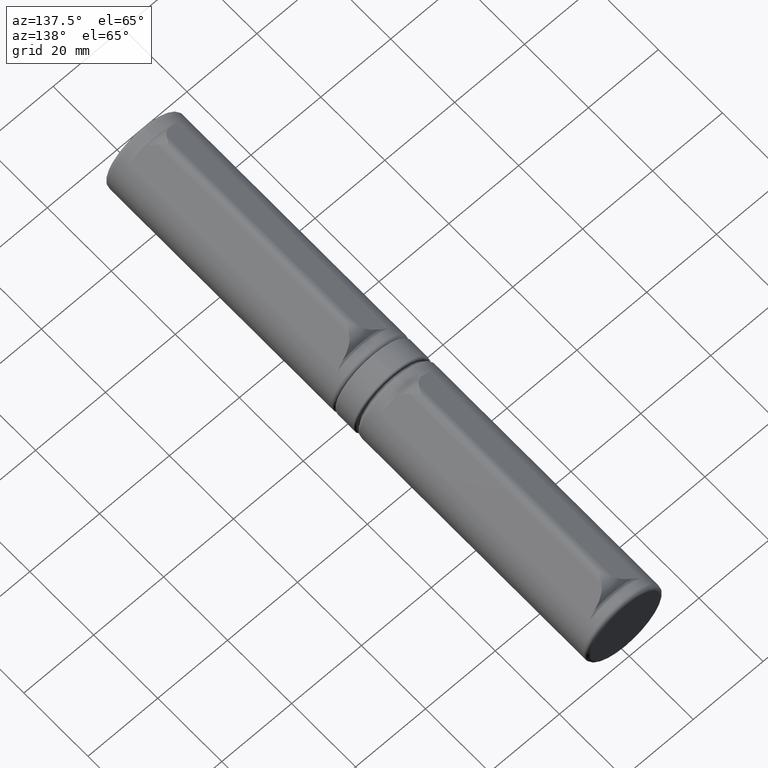
[diagram: clean part render]
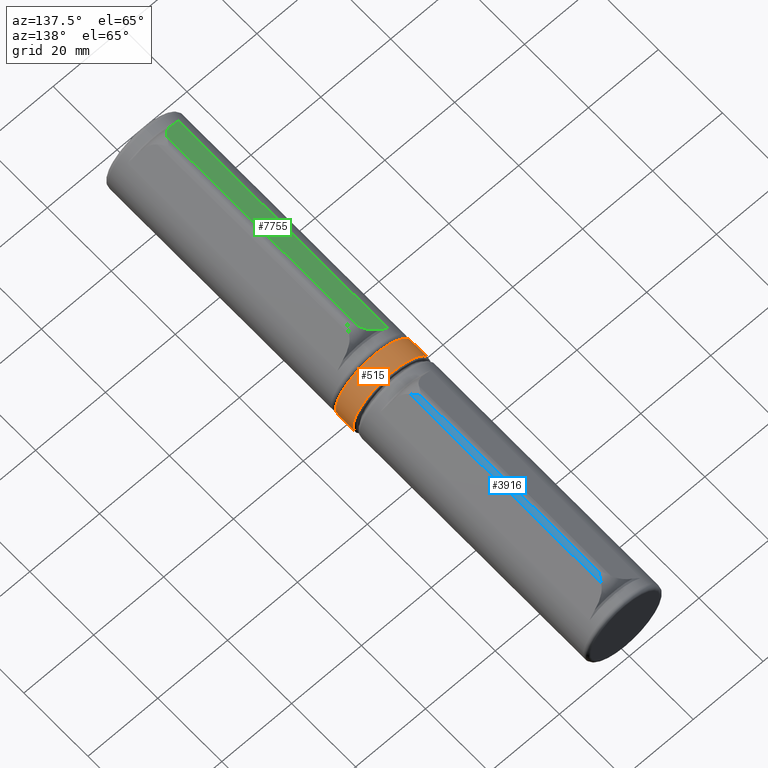
[diagram: same view with three faces highlighted in distinct colors, each labeled with its STEP entity id]
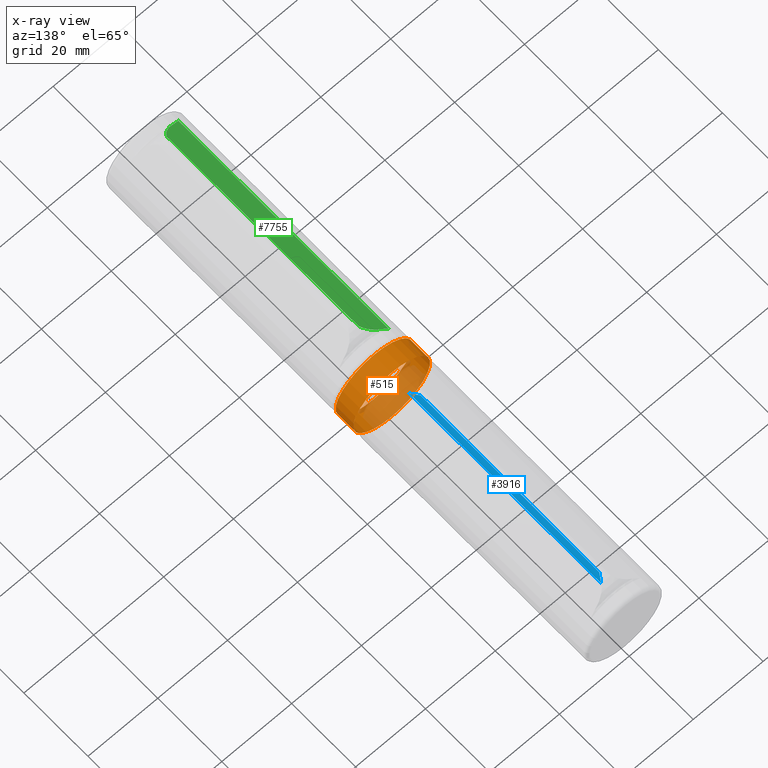
[diagram: x-ray of the same camera — body ghosted, the three highlighted faces saturated]
A machine part, auxiliary view with three faces highlighted in distinct colors.
The next image is the same camera in x-ray (body ghosted, the three faces saturated) — at least one of them is partly hidden behind the body in this view.
Their STEP definitions:

[orange] entity #515 — the highlighted cylindrical surface (bore or boss wall) has radius 11 mm, axis along (0, 1, 0).
#324 = EDGE_LOOP ( 'NONE', ( #10806 ) ) ;
#515 = ADVANCED_FACE ( 'NONE', ( #11118, #3271 ), #7920, .T. ) ;
#1279 = DIRECTION ( 'NONE',  ( 0.000000000000000000, 0.000000000000000000, 1.000000000000000000 ) ) ;
#1572 = DIRECTION ( 'NONE',  ( -0.000000000000000000, 1.000000000000000000, -0.000000000000000000 ) ) ;
#2250 = CARTESIAN_POINT ( 'NONE',  ( 0.000000000000000000, -3.149999999999999023, 11.00000000000000000 ) ) ;
#2970 = CARTESIAN_POINT ( 'NONE',  ( 0.000000000000000000, 0.000000000000000000, 0.000000000000000000 ) ) ;
#3127 = CIRCLE ( 'NONE', #4740, 11.00000000000000000 ) ;
#3271 = FACE_OUTER_BOUND ( 'NONE', #324, .T. ) ;
#4063 = CARTESIAN_POINT ( 'NONE',  ( 0.000000000000000000, 2.400000000000000355, 0.000000000000000000 ) ) ;
#4655 = ORIENTED_EDGE ( 'NONE', *, *, #9634, .T. ) ;
#4740 = AXIS2_PLACEMENT_3D ( 'NONE', #6736, #1572, #8441 ) ;
#6736 = CARTESIAN_POINT ( 'NONE',  ( 0.000000000000000000, -3.149999999999999023, 0.000000000000000000 ) ) ;
#7017 = VERTEX_POINT ( 'NONE', #2250 ) ;
#7052 = EDGE_LOOP ( 'NONE', ( #4655 ) ) ;
#7325 = DIRECTION ( 'NONE',  ( -0.000000000000000000, 1.000000000000000000, -0.000000000000000000 ) ) ;
#7920 = CYLINDRICAL_SURFACE ( 'NONE', #8702, 11.00000000000000000 ) ;
#7965 = EDGE_CURVE ( 'NONE', #11184, #11184, #8599, .T. ) ;
#8441 = DIRECTION ( 'NONE',  ( 0.000000000000000000, 0.000000000000000000, 1.000000000000000000 ) ) ;
#8599 = CIRCLE ( 'NONE', #11002, 11.00000000000000000 ) ;
#8702 = AXIS2_PLACEMENT_3D ( 'NONE', #2970, #7325, #1279 ) ;
#9634 = EDGE_CURVE ( 'NONE', #7017, #7017, #3127, .T. ) ;
#10216 = DIRECTION ( 'NONE',  ( 0.000000000000000000, 0.000000000000000000, -1.000000000000000000 ) ) ;
#10806 = ORIENTED_EDGE ( 'NONE', *, *, #7965, .T. ) ;
#10846 = CARTESIAN_POINT ( 'NONE',  ( 0.000000000000000000, 2.400000000000000355, -11.00000000000000000 ) ) ;
#11002 = AXIS2_PLACEMENT_3D ( 'NONE', #4063, #11093, #10216 ) ;
#11093 = DIRECTION ( 'NONE',  ( 0.000000000000000000, -1.000000000000000000, 0.000000000000000000 ) ) ;
#11118 = FACE_OUTER_BOUND ( 'NONE', #7052, .T. ) ;
#11184 = VERTEX_POINT ( 'NONE', #10846 ) ;

[blue] entity #3916 — the highlighted cylindrical surface (edge-blend (fillet) strip) has radius 2 mm, axis along (-0, -1, -0).
#38 = CARTESIAN_POINT ( 'NONE',  ( 0.02500000000000171529, 25.99999999999999645, 14.00000000000000178 ) ) ;
#238 = CARTESIAN_POINT ( 'NONE',  ( 0.04019047951975200650, 26.00000000000000000, 13.99994231150100177 ) ) ;
#323 = CARTESIAN_POINT ( 'NONE',  ( 1.160990710305745965, -29.62569070999766652, 13.66551710211812853 ) ) ;
#332 = CARTESIAN_POINT ( 'NONE',  ( 0.5013659999288786473, 28.61189442064642208, 13.94605056130608922 ) ) ;
#511 = LINE ( 'NONE', #4606, #8765 ) ;
#793 = DIRECTION ( 'NONE',  ( 0.000000000000000000, -1.000000000000000000, -1.445602896647339410E-16 ) ) ;
#917 = CARTESIAN_POINT ( 'NONE',  ( 0.02500000000000122610, 36.00000000000000000, 12.00000000000000355 ) ) ;
#1074 = EDGE_CURVE ( 'NONE', #8132, #5893, #3341, .T. ) ;
#1091 = EDGE_CURVE ( 'NONE', #2691, #5893, #3690, .T. ) ;
#1094 = EDGE_CURVE ( 'NONE', #2810, #3270, #6936, .T. ) ;
#1109 = CARTESIAN_POINT ( 'NONE',  ( 1.351001462184558077, 36.00000000000000000, 13.49723749695378849 ) ) ;
#1169 = DIRECTION ( 'NONE',  ( 0.000000000000000000, -1.000000000000000000, -1.445602896647339410E-16 ) ) ;
#1204 = CARTESIAN_POINT ( 'NONE',  ( 0.3265468217379240978, 28.35334104575060010, 13.97802397674086983 ) ) ;
#1226 = CARTESIAN_POINT ( 'NONE',  ( 0.06268146067872823468, -27.96398372410885003, 13.99965685889270084 ) ) ;
#1233 = DIRECTION ( 'NONE',  ( 0.000000000000000000, -1.000000000000000000, 1.445602896647339410E-16 ) ) ;
#1339 = CARTESIAN_POINT ( 'NONE',  ( 0.04019047951954253517, 27.91742430504415395, 13.99994231150100887 ) ) ;
#1544 = ORIENTED_EDGE ( 'NONE', *, *, #4748, .T. ) ;
#1640 = EDGE_CURVE ( 'NONE', #5411, #3985, #6807, .T. ) ;
#1950 = CARTESIAN_POINT ( 'NONE',  ( 0.1062027294717270559, -28.02908258809095443, 13.99840458350218597 ) ) ;
#2471 = AXIS2_PLACEMENT_3D ( 'NONE', #10271, #793, #7764 ) ;
#2691 = VERTEX_POINT ( 'NONE', #6318 ) ;
#2799 = CARTESIAN_POINT ( 'NONE',  ( 0.1501165675771497787, -28.09388185887261002, 13.99629779718921263 ) ) ;
#2810 = VERTEX_POINT ( 'NONE', #3060 ) ;
#2837 = CARTESIAN_POINT ( 'NONE',  ( 0.3258129472120024905, -28.35225974672253102, 13.97813046162209716 ) ) ;
#2952 = CARTESIAN_POINT ( 'NONE',  ( 0.5001282226505422424, -28.61005570449488289, 13.94633177584688966 ) ) ;
#3060 = CARTESIAN_POINT ( 'NONE',  ( 0.02500000000000171529, -25.99999999999999645, 14.00000000000000178 ) ) ;
#3151 = CARTESIAN_POINT ( 'NONE',  ( 0.04891763799561581194, 27.94185033604464508, 13.99986890743364576 ) ) ;
#3168 = VECTOR ( 'NONE', #9262, 1000.000000000000000 ) ;
#3176 = CARTESIAN_POINT ( 'NONE',  ( 0.02500000000000171529, 36.00000000000000000, 14.00000000000000178 ) ) ;
#3234 = CYLINDRICAL_SURFACE ( 'NONE', #9288, 2.000000000000001776 ) ;
#3270 = VERTEX_POINT ( 'NONE', #3837 ) ;
#3341 = B_SPLINE_CURVE_WITH_KNOTS ( 'NONE', 3,
 ( #10647, #9759, #7189, #1226, #10679, #3841, #1950, #2799, #6270, #3683, #2837, #2952, #8145, #6343, #323, #9909 ),
 .UNSPECIFIED., .F., .F.,
 ( 4, 2, 2, 2, 2, 2, 2, 4 ),
 ( 1.956890816479067532E-07, 3.924361120408033197E-05, 7.829153332651276741E-05, 0.0001563873775713690189, 0.0003125790660610902496, 0.0006249624430405327112, 0.001249729196999426525, 0.002499262704917206129 ),
 .UNSPECIFIED. ) ;
#3493 = DIRECTION ( 'NONE',  ( -0.000000000000000000, -1.000000000000000000, -0.000000000000000000 ) ) ;
#3651 = EDGE_LOOP ( 'NONE', ( #4934, #9663, #5065, #7846, #10265, #1544, #4027, #6233 ) ) ;
#3683 = CARTESIAN_POINT ( 'NONE',  ( 0.2673847846797132166, -28.26626032181201609, 13.98613017325101993 ) ) ;
#3690 = LINE ( 'NONE', #1109, #9265 ) ;
#3837 = CARTESIAN_POINT ( 'NONE',  ( 0.04019047951976118666, -26.00000000000000000, 13.99994231150100177 ) ) ;
#3841 = CARTESIAN_POINT ( 'NONE',  ( 0.09156454697700638912, -28.00747831101666208, 13.99894423454601977 ) ) ;
#3916 = ADVANCED_FACE ( 'NONE', ( #10955 ), #3234, .T. ) ;
#3985 = VERTEX_POINT ( 'NONE', #38 ) ;
#4027 = ORIENTED_EDGE ( 'NONE', *, *, #7087, .T. ) ;
#4551 = DIRECTION ( 'NONE',  ( 0.000000000000000000, 1.000000000000000000, -1.445602896647339410E-16 ) ) ;
#4606 = CARTESIAN_POINT ( 'NONE',  ( 0.04019047951975201344, 26.95871215252207875, 13.99994231150100354 ) ) ;
#4675 = EDGE_CURVE ( 'NONE', #3270, #8132, #8417, .T. ) ;
#4742 = CARTESIAN_POINT ( 'NONE',  ( 0.6156692077773874283, 28.78253752962173806, 13.91448063943788860 ) ) ;
#4748 = EDGE_CURVE ( 'NONE', #2691, #6020, #9702, .T. ) ;
#4858 = CARTESIAN_POINT ( 'NONE',  ( 0.09167234762572203099, 28.00763856088766701, 13.99894086666713910 ) ) ;
#4934 = ORIENTED_EDGE ( 'NONE', *, *, #6767, .T. ) ;
#5065 = ORIENTED_EDGE ( 'NONE', *, *, #4675, .T. ) ;
#5411 = VERTEX_POINT ( 'NONE', #238 ) ;
#5485 = CARTESIAN_POINT ( 'NONE',  ( 1.160508044113916393, 29.62484675074094653, 13.66594456674961755 ) ) ;
#5637 = AXIS2_PLACEMENT_3D ( 'NONE', #8028, #4551, #10607 ) ;
#5748 = CARTESIAN_POINT ( 'NONE',  ( 0.06995353398352960328, 27.97496614064052167, 13.99950784628993183 ) ) ;
#5893 = VERTEX_POINT ( 'NONE', #7575 ) ;
#6020 = VERTEX_POINT ( 'NONE', #10458 ) ;
#6233 = ORIENTED_EDGE ( 'NONE', *, *, #1640, .T. ) ;
#6270 = CARTESIAN_POINT ( 'NONE',  ( 0.1794816681744354492, -28.13700997572581741, 13.99424203055537674 ) ) ;
#6318 = CARTESIAN_POINT ( 'NONE',  ( 1.351001462188403002, 29.95793136768486420, 13.49723749695038322 ) ) ;
#6343 = CARTESIAN_POINT ( 'NONE',  ( 0.9500490946656295899, -29.29161573060240187, 13.78916174346675838 ) ) ;
#6602 = CARTESIAN_POINT ( 'NONE',  ( 0.1063434402170490706, 28.02929075759493571, 13.99839909054449727 ) ) ;
#6767 = EDGE_CURVE ( 'NONE', #3985, #2810, #7546, .T. ) ;
#6807 = CIRCLE ( 'NONE', #2471, 2.000000000000001776 ) ;
#6936 = CIRCLE ( 'NONE', #5637, 2.000000000000001776 ) ;
#6989 = CARTESIAN_POINT ( 'NONE',  ( 0.04019047951957565451, -27.91742430504415395, 13.99994231150100887 ) ) ;
#7087 = EDGE_CURVE ( 'NONE', #6020, #5411, #511, .T. ) ;
#7189 = CARTESIAN_POINT ( 'NONE',  ( 0.04890691204995075564, -27.94183058076624704, 13.99986897204585112 ) ) ;
#7226 = DIRECTION ( 'NONE',  ( -0.000000000000000000, -1.000000000000000000, -0.000000000000000000 ) ) ;
#7239 = CARTESIAN_POINT ( 'NONE',  ( 0.2679075107729744221, 28.26702913599298839, 13.98607088621623795 ) ) ;
#7546 = LINE ( 'NONE', #3176, #3168 ) ;
#7575 = CARTESIAN_POINT ( 'NONE',  ( 1.351001462192061187, -29.95793136769125908, 13.49723749694714137 ) ) ;
#7764 = DIRECTION ( 'NONE',  ( 0.000000000000000000, 0.000000000000000000, -1.000000000000000000 ) ) ;
#7846 = ORIENTED_EDGE ( 'NONE', *, *, #1074, .T. ) ;
#7875 = DIRECTION ( 'NONE',  ( 0.000000000000000000, 0.000000000000000000, -1.000000000000000000 ) ) ;
#8028 = CARTESIAN_POINT ( 'NONE',  ( 0.02500000000000122610, -25.99999999999999645, 12.00000000000000355 ) ) ;
#8132 = VERTEX_POINT ( 'NONE', #6989 ) ;
#8145 = CARTESIAN_POINT ( 'NONE',  ( 0.6152469644729674503, -28.78189699773122712, 13.91463114303699200 ) ) ;
#8417 = LINE ( 'NONE', #9058, #10553 ) ;
#8765 = VECTOR ( 'NONE', #1169, 1000.000000000000000 ) ;
#9058 = CARTESIAN_POINT ( 'NONE',  ( 0.04019047951975201344, -26.95871215252207875, 13.99994231150100354 ) ) ;
#9262 = DIRECTION ( 'NONE',  ( -0.000000000000000000, -1.000000000000000000, -0.000000000000000000 ) ) ;
#9265 = VECTOR ( 'NONE', #7226, 1000.000000000000000 ) ;
#9288 = AXIS2_PLACEMENT_3D ( 'NONE', #917, #3493, #7875 ) ;
#9663 = ORIENTED_EDGE ( 'NONE', *, *, #1094, .T. ) ;
#9702 = B_SPLINE_CURVE_WITH_KNOTS ( 'NONE', 3,
 ( #10765, #5485, #9960, #4742, #332, #1204, #7239, #10905, #10829, #6602, #4858, #5748, #10792, #3151, #9988, #1339 ),
 .UNSPECIFIED., .F., .F.,
 ( 4, 2, 2, 2, 2, 2, 2, 4 ),
 ( 4.340072789122259820E-07, 0.001240519005735587392, 0.001860561504963924567, 0.002170582754578093479, 0.002325593379385177718, 0.002403098691788723741, 0.002441851347990501523, 0.002480604004192278438 ),
 .UNSPECIFIED. ) ;
#9759 = CARTESIAN_POINT ( 'NONE',  ( 0.04019047951956296327, -27.93071537509031899, 13.99994231150100354 ) ) ;
#9909 = CARTESIAN_POINT ( 'NONE',  ( 1.351001462192061187, -29.95793136769125908, 13.49723749694714137 ) ) ;
#9960 = CARTESIAN_POINT ( 'NONE',  ( 0.9495471721048669433, 29.29085620622733188, 13.78933436052302319 ) ) ;
#9988 = CARTESIAN_POINT ( 'NONE',  ( 0.04019047938135301978, 27.93061954580347361, 13.99994231150222213 ) ) ;
#10265 = ORIENTED_EDGE ( 'NONE', *, *, #1091, .F. ) ;
#10271 = CARTESIAN_POINT ( 'NONE',  ( 0.02500000000000122610, 25.99999999999999645, 12.00000000000000355 ) ) ;
#10458 = CARTESIAN_POINT ( 'NONE',  ( 0.04019047951954253517, 27.91742430504415395, 13.99994231150100887 ) ) ;
#10553 = VECTOR ( 'NONE', #1233, 1000.000000000000000 ) ;
#10607 = DIRECTION ( 'NONE',  ( 0.000000000000000000, 0.000000000000000000, 1.000000000000000000 ) ) ;
#10647 = CARTESIAN_POINT ( 'NONE',  ( 0.04019047951957565451, -27.91742430504415395, 13.99994231150100887 ) ) ;
#10679 = CARTESIAN_POINT ( 'NONE',  ( 0.06989227748950904706, -27.97487302322779712, 13.99950916635972931 ) ) ;
#10765 = CARTESIAN_POINT ( 'NONE',  ( 1.351001462188403002, 29.95793136768486420, 13.49723749695038322 ) ) ;
#10792 = CARTESIAN_POINT ( 'NONE',  ( 0.06272908214061213850, 27.96405779639183464, 13.99965602459222325 ) ) ;
#10829 = CARTESIAN_POINT ( 'NONE',  ( 0.1503508223234190089, 28.09422644235295508, 13.99628402106626979 ) ) ;
#10905 = CARTESIAN_POINT ( 'NONE',  ( 0.1797755674968879724, 28.13744201227907027, 13.99422038142037827 ) ) ;
#10955 = FACE_OUTER_BOUND ( 'NONE', #3651, .T. ) ;

[green] entity #7755 — the highlighted planar face has unit normal (0.663, 0, -0.7486).
#50 = DIRECTION ( 'NONE',  ( -0.000000000000000000, -1.000000000000000000, -0.000000000000000000 ) ) ;
#246 = CARTESIAN_POINT ( 'NONE',  ( -5.447942985781642378, -32.37104201919539292, 9.868854917819081862 ) ) ;
#276 = CARTESIAN_POINT ( 'NONE',  ( -5.758780296161760681, -32.41736844719445543, 9.593567444118923149 ) ) ;
#383 = CARTESIAN_POINT ( 'NONE',  ( -3.035715932361762182, 31.60344858703625093, 12.00520042510411223 ) ) ;
#415 = CARTESIAN_POINT ( 'NONE',  ( -3.569870829633103426, 31.87809028156799585, 11.53213574681767462 ) ) ;
#443 = ORIENTED_EDGE ( 'NONE', *, *, #5989, .F. ) ;
#524 = CARTESIAN_POINT ( 'NONE',  ( -3.940691542818028026, 32.01865915691611519, 11.20372505119193818 ) ) ;
#977 = CARTESIAN_POINT ( 'NONE',  ( -6.067205832993831649, 32.48636218328562109, 9.320415914287178083 ) ) ;
#1049 = CARTESIAN_POINT ( 'NONE',  ( -4.695170118838899675, -32.23773122813857128, 10.53553466922110360 ) ) ;
#1159 = CARTESIAN_POINT ( 'NONE',  ( -5.447942985781642378, -32.37104201919539292, 9.868854917819081862 ) ) ;
#1261 = VERTEX_POINT ( 'NONE', #4729 ) ;
#1880 = CARTESIAN_POINT ( 'NONE',  ( -1.586987748186611480, -30.37056190615778206, 13.28824048683956960 ) ) ;
#1921 = CARTESIAN_POINT ( 'NONE',  ( -1.587154504392917165, 30.37085348540324858, 13.28809280220447597 ) ) ;
#1944 = EDGE_CURVE ( 'NONE', #4616, #2733, #6838, .T. ) ;
#1963 = CARTESIAN_POINT ( 'NONE',  ( -3.951137175203035756, -32.01407879760264308, 11.19447406472910700 ) ) ;
#2038 = CARTESIAN_POINT ( 'NONE',  ( -1.873287189988674939, -30.71014211084137102, 13.03468453514550163 ) ) ;
#2039 = CARTESIAN_POINT ( 'NONE',  ( -2.351011572594685184, 31.13966351073068495, 12.61159652730066227 ) ) ;
#2117 = CARTESIAN_POINT ( 'NONE',  ( -5.447942985781645930, 32.37104201919539292, 9.868854917819076533 ) ) ;
#2214 = CARTESIAN_POINT ( 'NONE',  ( -1.351001462184445279, 29.95793136767795772, 13.49723749695388086 ) ) ;
#2594 = CARTESIAN_POINT ( 'NONE',  ( -7.293008042015047820, 32.81640379061051505, 8.234806233245794971 ) ) ;
#2733 = VERTEX_POINT ( 'NONE', #9807 ) ;
#2881 = LINE ( 'NONE', #5210, #5890 ) ;
#2896 = CARTESIAN_POINT ( 'NONE',  ( -2.860889670684951813, 31.50107170427018843, 12.16003215960406081 ) ) ;
#3292 = CARTESIAN_POINT ( 'NONE',  ( -7.293008042015047820, 36.00000000000000000, 8.234806233245794971 ) ) ;
#3440 = VERTEX_POINT ( 'NONE', #10433 ) ;
#3680 = EDGE_CURVE ( 'NONE', #1261, #7322, #4441, .T. ) ;
#3815 = DIRECTION ( 'NONE',  ( 0.6630007310922773067, 0.000000000000000000, -0.7486187484768904721 ) ) ;
#4257 = CARTESIAN_POINT ( 'NONE',  ( -6.681504807941665014, 32.64214442038468889, 8.776373074953683684 ) ) ;
#4347 = DIRECTION ( 'NONE',  ( -0.000000000000000000, -1.000000000000000000, -0.000000000000000000 ) ) ;
#4441 = B_SPLINE_CURVE_WITH_KNOTS ( 'NONE', 3,
 ( #7857, #10365, #977, #4257, #5181, #2594 ),
 .UNSPECIFIED., .F., .F.,
 ( 4, 2, 4 ),
 ( 0.000000000000000000, 0.001252526485368583766, 0.002505052970737167532 ),
 .UNSPECIFIED. ) ;
#4524 = CARTESIAN_POINT ( 'NONE',  ( -1.351001462184552304, -29.95793136767813891, 13.49723749695378672 ) ) ;
#4616 = VERTEX_POINT ( 'NONE', #1159 ) ;
#4729 = CARTESIAN_POINT ( 'NONE',  ( -5.447942985781645930, 32.37104201919539292, 9.868854917819076533 ) ) ;
#4848 = EDGE_LOOP ( 'NONE', ( #7632, #9657, #10985, #443, #5240, #10915 ) ) ;
#5112 = EDGE_CURVE ( 'NONE', #3440, #4616, #9853, .T. ) ;
#5181 = CARTESIAN_POINT ( 'NONE',  ( -6.987323153768357997, 32.72934799532367833, 8.505530556946956366 ) ) ;
#5210 = CARTESIAN_POINT ( 'NONE',  ( -1.351001462184552748, 36.00000000000000000, 13.49723749695378672 ) ) ;
#5240 = ORIENTED_EDGE ( 'NONE', *, *, #5787, .T. ) ;
#5408 = CARTESIAN_POINT ( 'NONE',  ( -2.515940252614200290, -31.28758993470380645, 12.46553040799293655 ) ) ;
#5787 = EDGE_CURVE ( 'NONE', #7242, #1261, #7245, .T. ) ;
#5884 = LINE ( 'NONE', #3292, #6159 ) ;
#5890 = VECTOR ( 'NONE', #50, 1000.000000000000000 ) ;
#5989 = EDGE_CURVE ( 'NONE', #7242, #2733, #2881, .T. ) ;
#6159 = VECTOR ( 'NONE', #4347, 1000.000000000000000 ) ;
#6176 = AXIS2_PLACEMENT_3D ( 'NONE', #6404, #3815, #7285 ) ;
#6247 = CARTESIAN_POINT ( 'NONE',  ( -4.136579845280345502, -32.07583796848808078, 11.03024009905951885 ) ) ;
#6249 = CARTESIAN_POINT ( 'NONE',  ( -1.351001462184445279, 29.95793136767795772, 13.49723749695388086 ) ) ;
#6404 = CARTESIAN_POINT ( 'NONE',  ( -7.293008042015047820, 36.00000000000000000, 8.234806233245794971 ) ) ;
#6838 = B_SPLINE_CURVE_WITH_KNOTS ( 'NONE', 3,
 ( #7204, #8000, #1049, #6247, #1963, #9818, #7154, #8089, #5408, #2038, #1880, #4524 ),
 .UNSPECIFIED., .F., .F.,
 ( 4, 2, 2, 2, 2, 4 ),
 ( 0.002461092890325597329, 0.003982605754971837823, 0.004743362187294962624, 0.005504118619618088293, 0.007025631484264346568, 0.008547144348910601375 ),
 .UNSPECIFIED. ) ;
#7154 = CARTESIAN_POINT ( 'NONE',  ( -3.398271117733235869, -31.78961271975397906, 11.68410994553539162 ) ) ;
#7187 = CARTESIAN_POINT ( 'NONE',  ( -6.681502846419478558, -32.64214389153531926, 8.776374812140536719 ) ) ;
#7204 = CARTESIAN_POINT ( 'NONE',  ( -5.447942985781642378, -32.37104201919539292, 9.868854917819081862 ) ) ;
#7242 = VERTEX_POINT ( 'NONE', #2214 ) ;
#7245 = B_SPLINE_CURVE_WITH_KNOTS ( 'NONE', 3,
 ( #6249, #1921, #10583, #2039, #8090, #2896, #383, #415, #524, #10834, #9967, #2117 ),
 .UNSPECIFIED., .F., .F.,
 ( 4, 2, 2, 2, 2, 4 ),
 ( 4.315846893833480204E-07, 0.001529138967088140453, 0.002293492658287518519, 0.003057846349486897236, 0.004586553731885653802, 0.006115261114284411235 ),
 .UNSPECIFIED. ) ;
#7285 = DIRECTION ( 'NONE',  ( -0.7486187484768904721, 0.000000000000000000, -0.6630007310922773067 ) ) ;
#7322 = VERTEX_POINT ( 'NONE', #8267 ) ;
#7632 = ORIENTED_EDGE ( 'NONE', *, *, #8403, .T. ) ;
#7755 = ADVANCED_FACE ( 'NONE', ( #11012 ), #10701, .F. ) ;
#7857 = CARTESIAN_POINT ( 'NONE',  ( -5.447942985781645930, 32.37104201919539292, 9.868854917819076533 ) ) ;
#8000 = CARTESIAN_POINT ( 'NONE',  ( -5.070549496298426995, -32.31479622200819080, 10.20308667456563967 ) ) ;
#8025 = CARTESIAN_POINT ( 'NONE',  ( -7.293008042015047820, -32.81640379061052215, 8.234806233245794971 ) ) ;
#8072 = CARTESIAN_POINT ( 'NONE',  ( -6.067204845374555511, -32.48636196425200495, 9.320416788954421605 ) ) ;
#8089 = CARTESIAN_POINT ( 'NONE',  ( -2.860236993032547748, -31.51370890940605207, 12.16061019182886582 ) ) ;
#8090 = CARTESIAN_POINT ( 'NONE',  ( -2.519150998510788497, 31.26974603272012487, 12.46268686863312070 ) ) ;
#8267 = CARTESIAN_POINT ( 'NONE',  ( -7.293008042015047820, 32.81640379061051505, 8.234806233245794971 ) ) ;
#8403 = EDGE_CURVE ( 'NONE', #7322, #3440, #5884, .T. ) ;
#9657 = ORIENTED_EDGE ( 'NONE', *, *, #5112, .T. ) ;
#9757 = CARTESIAN_POINT ( 'NONE',  ( -6.987265212205395315, -32.72933149418252441, 8.505581871850147024 ) ) ;
#9807 = CARTESIAN_POINT ( 'NONE',  ( -1.351001462184552304, -29.95793136767813891, 13.49723749695378672 ) ) ;
#9818 = CARTESIAN_POINT ( 'NONE',  ( -3.582135124441386598, -31.87109352856001721, 11.52127409468731045 ) ) ;
#9853 = B_SPLINE_CURVE_WITH_KNOTS ( 'NONE', 3,
 ( #8025, #9757, #7187, #8072, #276, #246 ),
 .UNSPECIFIED., .F., .F.,
 ( 4, 2, 4 ),
 ( -2.097617699593892554E-05, 0.001231787720640634869, 0.002484551618277208718 ),
 .UNSPECIFIED. ) ;
#9967 = CARTESIAN_POINT ( 'NONE',  ( -5.068691198825535871, 32.31451926592470869, 10.20473244230204024 ) ) ;
#10365 = CARTESIAN_POINT ( 'NONE',  ( -5.758780793587663815, 32.41736852132959967, 9.593567003582615271 ) ) ;
#10433 = CARTESIAN_POINT ( 'NONE',  ( -7.293008042015047820, -32.81640379061052215, 8.234806233245794971 ) ) ;
#10583 = CARTESIAN_POINT ( 'NONE',  ( -1.872568329513452312, 30.70895200636799771, 13.03532118099707660 ) ) ;
#10701 = PLANE ( 'NONE',  #6176 ) ;
#10834 = CARTESIAN_POINT ( 'NONE',  ( -4.691065978044097307, 32.23693990495932127, 10.53916942770530873 ) ) ;
#10915 = ORIENTED_EDGE ( 'NONE', *, *, #3680, .T. ) ;
#10985 = ORIENTED_EDGE ( 'NONE', *, *, #1944, .T. ) ;
#11012 = FACE_OUTER_BOUND ( 'NONE', #4848, .T. ) ;